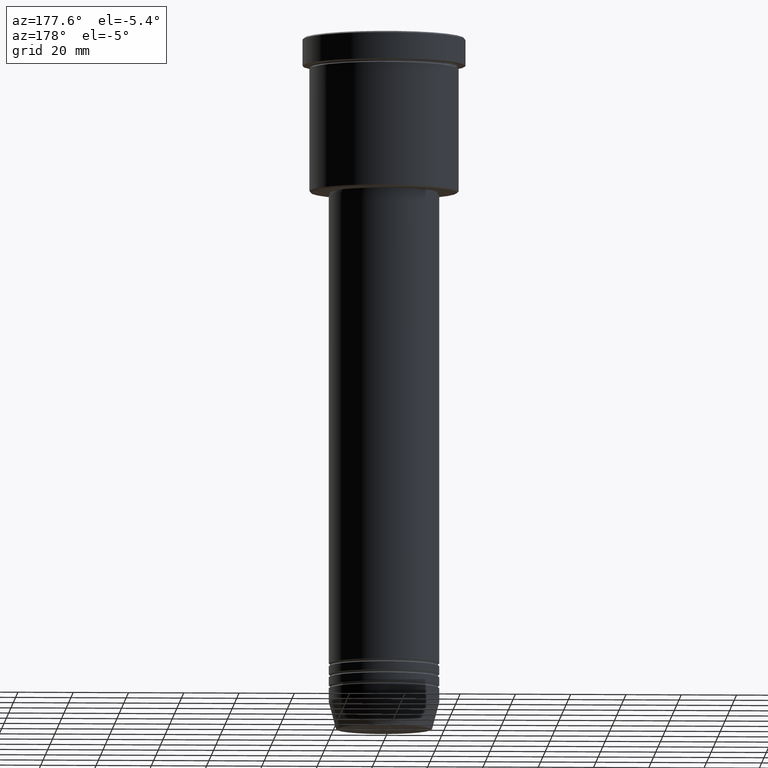
[diagram: clean part render]
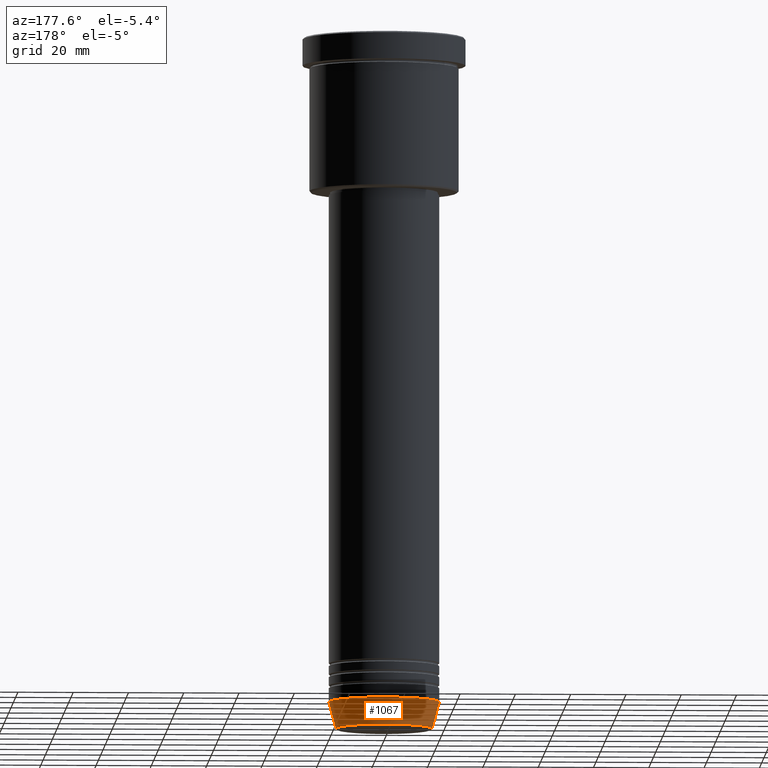
[diagram: same view with one face highlighted and labeled with its STEP entity id]
A machine part, auxiliary view. The second image highlights one B-rep face of the part: STEP entity #1067.
In plain terms, the highlighted conical surface has half-angle 15 deg.
Its self-contained STEP definition (entity closure, byte-faithful):
#3 = ORIENTED_EDGE ( 'NONE', *, *, #1121, .T. ) ;
#5 = ORIENTED_EDGE ( 'NONE', *, *, #488, .T. ) ;
#125 = CARTESIAN_POINT ( 'NONE',  ( -20.00000000000000000, 2.449293598294706513E-15, -241.0000000000000000 ) ) ;
#162 = VECTOR ( 'NONE', #781, 1000.000000000000114 ) ;
#217 = DIRECTION ( 'NONE',  ( 0.2588190451025211836, 0.000000000000000000, 0.9659258262890680902 ) ) ;
#249 = EDGE_CURVE ( 'NONE', #446, #1014, #459, .T. ) ;
#285 = ORIENTED_EDGE ( 'NONE', *, *, #918, .F. ) ;
#305 = CARTESIAN_POINT ( 'NONE',  ( 20.00000000000000000, 0.000000000000000000, -241.0000000000000000 ) ) ;
#308 = AXIS2_PLACEMENT_3D ( 'NONE', #444, #971, #584 ) ;
#335 = CARTESIAN_POINT ( 'NONE',  ( 0.000000000000000000, 0.000000000000000000, -241.0000000000000000 ) ) ;
#393 = CARTESIAN_POINT ( 'NONE',  ( 17.41980749484382329, 0.000000000000000000, -250.6294095225512422 ) ) ;
#444 = CARTESIAN_POINT ( 'NONE',  ( 0.000000000000000000, 0.000000000000000000, -241.0000000000000000 ) ) ;
#445 = CONICAL_SURFACE ( 'NONE', #970, 20.00000000000000000, 0.2617993877991499074 ) ;
#446 = VERTEX_POINT ( 'NONE', #553 ) ;
#459 = CIRCLE ( 'NONE', #308, 20.00000000000000000 ) ;
#488 = EDGE_CURVE ( 'NONE', #575, #831, #1006, .T. ) ;
#492 = VECTOR ( 'NONE', #217, 1000.000000000000114 ) ;
#496 = DIRECTION ( 'NONE',  ( -0.000000000000000000, -0.000000000000000000, 1.000000000000000000 ) ) ;
#553 = CARTESIAN_POINT ( 'NONE',  ( 20.00000000000000000, 0.000000000000000000, -241.0000000000000000 ) ) ;
#558 = CARTESIAN_POINT ( 'NONE',  ( -17.41980749484382329, 2.291302373663531915E-15, -250.6294095225512422 ) ) ;
#575 = VERTEX_POINT ( 'NONE', #393 ) ;
#584 = DIRECTION ( 'NONE',  ( 1.000000000000000000, 0.000000000000000000, 0.000000000000000000 ) ) ;
#638 = ORIENTED_EDGE ( 'NONE', *, *, #249, .F. ) ;
#696 = CARTESIAN_POINT ( 'NONE',  ( -20.00000000000000000, 2.449293598294706513E-15, -241.0000000000000000 ) ) ;
#716 = DIRECTION ( 'NONE',  ( -0.000000000000000000, -0.000000000000000000, 1.000000000000000000 ) ) ;
#781 = DIRECTION ( 'NONE',  ( -0.2588190451025211836, 3.169619151431770488E-17, 0.9659258262890680902 ) ) ;
#831 = VERTEX_POINT ( 'NONE', #558 ) ;
#918 = EDGE_CURVE ( 'NONE', #575, #446, #1115, .T. ) ;
#954 = DIRECTION ( 'NONE',  ( 1.000000000000000000, 0.000000000000000000, 0.000000000000000000 ) ) ;
#970 = AXIS2_PLACEMENT_3D ( 'NONE', #335, #496, #954 ) ;
#971 = DIRECTION ( 'NONE',  ( -0.000000000000000000, -0.000000000000000000, 1.000000000000000000 ) ) ;
#981 = LINE ( 'NONE', #696, #162 ) ;
#997 = EDGE_LOOP ( 'NONE', ( #5, #3, #638, #285 ) ) ;
#1006 = CIRCLE ( 'NONE', #1102, 17.41980749484382329 ) ;
#1014 = VERTEX_POINT ( 'NONE', #125 ) ;
#1067 = ADVANCED_FACE ( 'NONE', ( #1144 ), #445, .T. ) ;
#1088 = DIRECTION ( 'NONE',  ( 1.000000000000000000, 0.000000000000000000, 0.000000000000000000 ) ) ;
#1102 = AXIS2_PLACEMENT_3D ( 'NONE', #1178, #716, #1088 ) ;
#1115 = LINE ( 'NONE', #305, #492 ) ;
#1121 = EDGE_CURVE ( 'NONE', #831, #1014, #981, .T. ) ;
#1144 = FACE_OUTER_BOUND ( 'NONE', #997, .T. ) ;
#1178 = CARTESIAN_POINT ( 'NONE',  ( 0.000000000000000000, 0.000000000000000000, -250.6294095225512422 ) ) ;